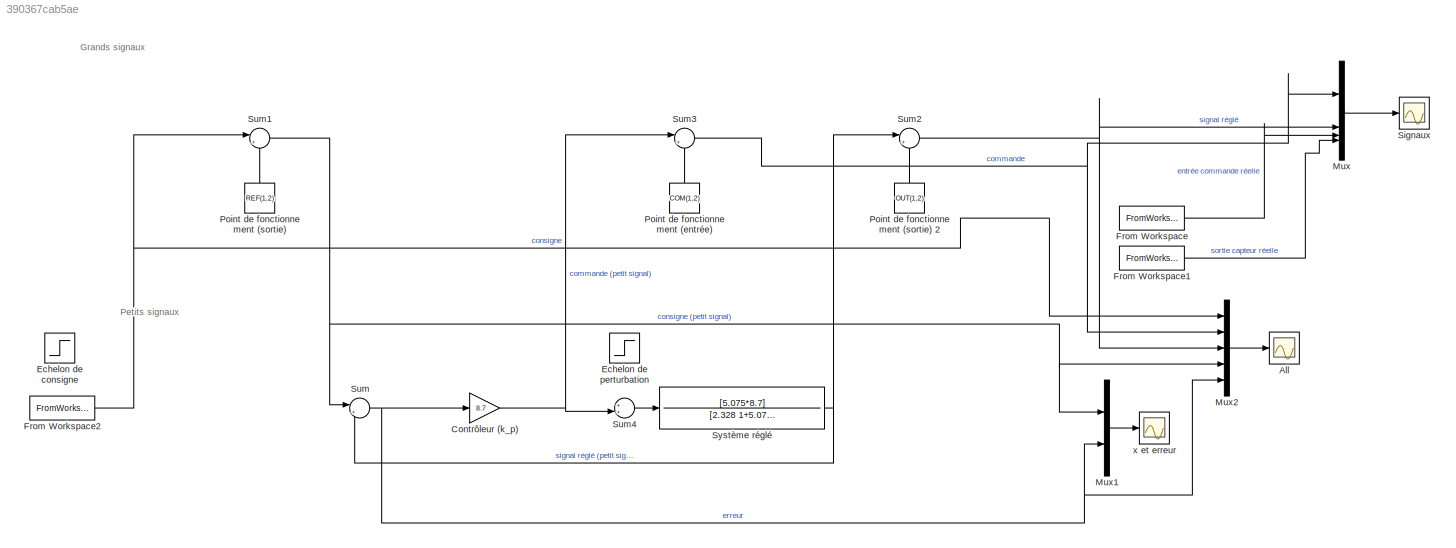
MODEL slx_390367cab5ae
KIND model
CONFIG AbsTol = auto
CONFIG EnableMultiTasking = off
CONFIG FixedStep = auto
CONFIG MaxStep = 0.001
CONFIG MinStep = auto
CONFIG RelTol = 1e-3
CONFIG SampleTimeConstraint = Unconstrained
CONFIG SolverName = VariableStepAuto
CONFIG StartTime = 0.0
CONFIG StopTime = 10.0
BLOCK [Scope] All
  Floating = off
  NumInputPorts = 1
  ScopeSpecificationString = Simulink.scopes.TimeScopeBlockCfg('CurrentConfiguration', extmgr.ConfigurationSet(extmgr.Configuration('Core','General UI',true,'FigureColor',[0.941176470588235 0.941176470588235 0.941176470588235]),extmgr.Configuration('Core','Source UI',true),extmgr.Configuration('Sources','WiredSimulink',true,'DataLoggingVariableName','ScopeData2'),extmgr.Configuration('Visuals','Time Domain',true,'SerializedDi...<+2076ch>
BLOCK [Gain] Contrôleur (k_p)
  Gain = 8.7
BLOCK [Step] Echelon de consigne 
  After = 1.5+5.782
  Before = 5.782
  SampleTime = 0
BLOCK [Step] Echelon de perturbation
  NameLocation = right
  SampleTime = 0
BLOCK [FromWorkspace] From Workspace
  VariableName = COM
BLOCK [FromWorkspace] From Workspace1
  VariableName = OUT
BLOCK [FromWorkspace] From Workspace2
  VariableName = REF
BLOCK [Mux] Mux
  DisplayOption = bar
BLOCK [Mux] Mux1
  DisplayOption = bar
  Inputs = 2
BLOCK [Mux] Mux2
  DisplayOption = bar
  Inputs = 5
BLOCK [Constant] Point de fonctionnement (entrée)
  Value = COM(1,2)
BLOCK [Constant] Point de fonctionnement (sortie)
  Value = REF(1,2)
BLOCK [Constant] Point de fonctionnement (sortie) 2
  NameLocation = right
  Value = OUT(1,2)
BLOCK [Scope] Signaux
  Floating = off
  NumInputPorts = 1
  ScopeSpecificationString = Simulink.scopes.TimeScopeBlockCfg('CurrentConfiguration', extmgr.ConfigurationSet(extmgr.Configuration('Core','General UI',true,'FigureColor',[0.941176470588235 0.941176470588235 0.941176470588235]),extmgr.Configuration('Core','Source UI',true),extmgr.Configuration('Sources','WiredSimulink',true),extmgr.Configuration('Visuals','Time Domain',true,'SerializedDisplays',{struct('MinYLimReal','-1.66287...<+2398ch>
BLOCK [Sum] Sum
  Inputs = |+-
BLOCK [Sum] Sum1
  Inputs = |+-
BLOCK [Sum] Sum2
  Inputs = |++
BLOCK [Sum] Sum3
  Inputs = |++
  NameLocation = top
BLOCK [Sum] Sum4
  Inputs = ++|
  NameLocation = top
BLOCK [TransferFcn] Système réglé
  Denominator = [2.328 1+5.075*8.7]
  Numerator = [5.075*8.7]
BLOCK [Scope] x et erreur
  Floating = off
  NumInputPorts = 1
  ScopeSpecificationString = Simulink.scopes.TimeScopeBlockCfg('CurrentConfiguration', extmgr.ConfigurationSet(extmgr.Configuration('Core','General UI',true,'FigureColor',[0.941176470588235 0.941176470588235 0.941176470588235]),extmgr.Configuration('Core','Source UI',true),extmgr.Configuration('Sources','WiredSimulink',true,'DataLoggingVariableName','ScopeData1'),extmgr.Configuration('Visuals','Time Domain',true,'SerializedDi...<+2381ch>
ANNOTATION (root): Grands signaux
ANNOTATION (root): Petits signaux
NET Contrôleur (k_p):1 -> Sum3:1, Sum4:2
LINE From Workspace1:1 -> Mux:4
NET From Workspace2:1 -> Mux2:1, Sum1:1
LINE From Workspace:1 -> Mux:3
LINE Mux1:1 -> x et erreur:1
LINE Mux2:1 -> All:1
LINE Mux:1 -> Signaux:1
LINE Point de fonctionnement (entrée):1 -> Sum3:2
LINE Point de fonctionnement (sortie) 2:1 -> Sum2:2
LINE Point de fonctionnement (sortie):1 -> Sum1:2
NET Sum1:1 -> Mux1:1, Mux2:4, Sum:1
NET Sum2:1 -> Mux2:3, Mux:2
NET Sum3:1 -> Mux2:2, Mux:1
LINE Sum4:1 -> Système réglé:1
NET Sum:1 -> Contrôleur (k_p):1, Mux1:2, Mux2:5
NET Système réglé:1 -> Sum2:1, Sum:2
note: NET lines group one-source signal fan-out (src -> all destinations, sorted); 1:1 wires keep LINE
